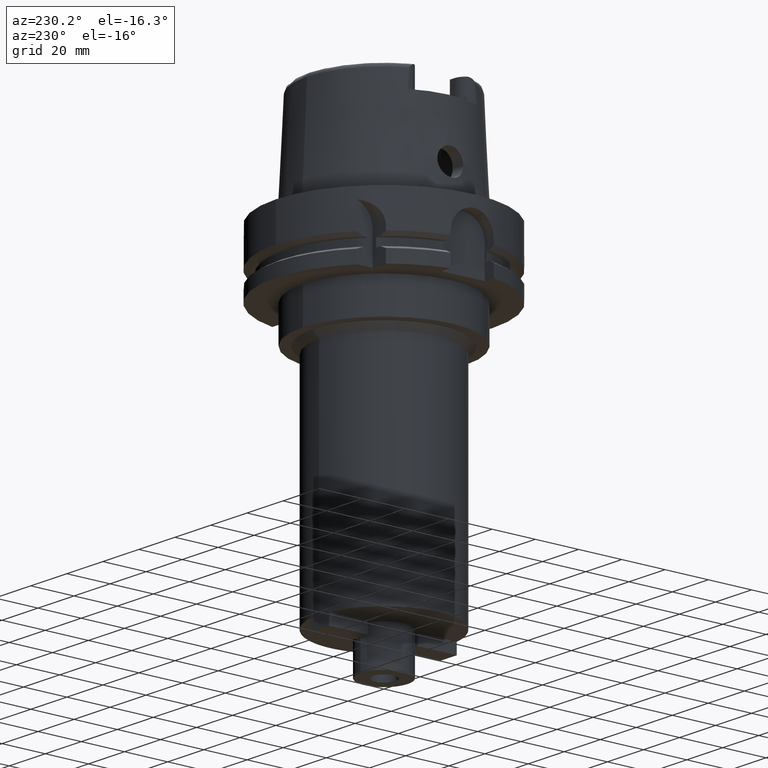
[diagram: clean part render]
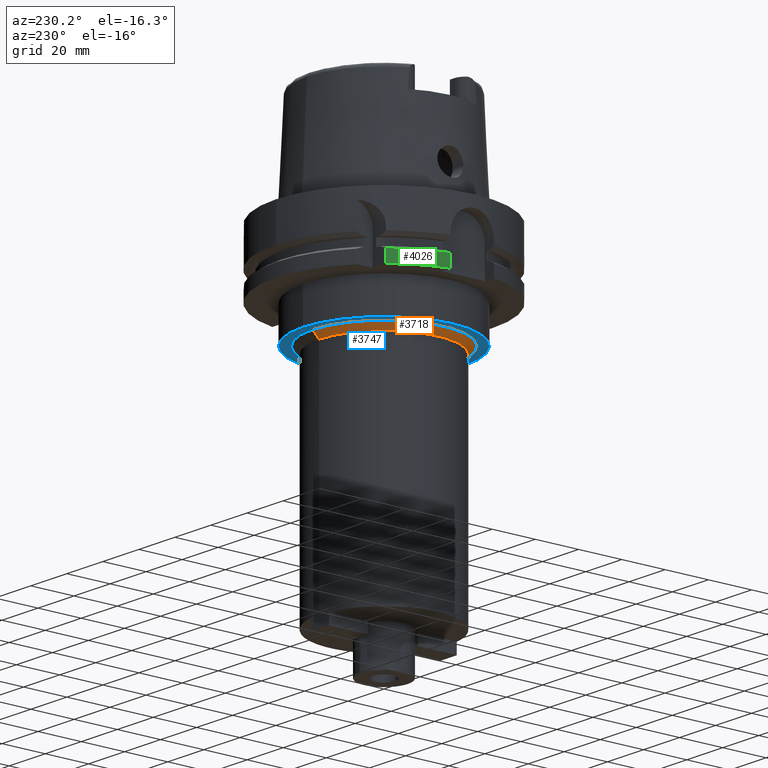
[diagram: same view with three faces highlighted in distinct colors, each labeled with its STEP entity id]
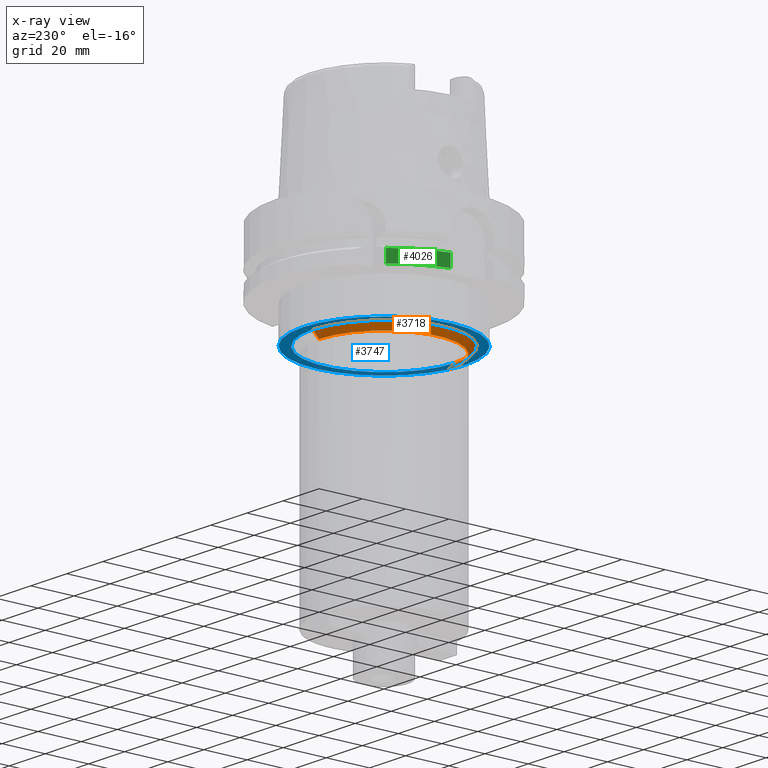
[diagram: x-ray of the same camera — body ghosted, the three highlighted faces saturated]
A machine part, auxiliary view with three faces highlighted in distinct colors.
The next image is the same camera in x-ray (body ghosted, the three faces saturated) — at least one of them is partly hidden behind the body in this view.
Their STEP definitions:

[orange] entity #3718 — the highlighted conical surface has half-angle 45 deg.
#1209=DIRECTION('',(0.E0,7.071067811865E-1,-7.071067811865E-1));
#1210=VECTOR('',#1209,4.242640687119E0);
#1211=CARTESIAN_POINT('',(0.E0,-3.3E1,-4.5E1));
#1212=LINE('',#1211,#1210);
#1216=CARTESIAN_POINT('',(0.E0,0.E0,-4.8E1));
#1217=DIRECTION('',(0.E0,0.E0,-1.E0));
#1218=DIRECTION('',(0.E0,-1.E0,0.E0));
#1219=AXIS2_PLACEMENT_3D('',#1216,#1217,#1218);
#1224=DIRECTION('',(0.E0,-7.071067811865E-1,-7.071067811865E-1));
#1225=VECTOR('',#1224,4.242640687119E0);
#1226=CARTESIAN_POINT('',(0.E0,3.3E1,-4.5E1));
#1227=LINE('',#1226,#1225);
#1255=CARTESIAN_POINT('',(0.E0,0.E0,-4.5E1));
#1256=DIRECTION('',(0.E0,0.E0,-1.E0));
#1257=DIRECTION('',(0.E0,-1.E0,0.E0));
#1258=AXIS2_PLACEMENT_3D('',#1255,#1256,#1257);
#2637=CARTESIAN_POINT('',(0.E0,3.E1,-4.8E1));
#2638=VERTEX_POINT('',#2637);
#2639=CARTESIAN_POINT('',(0.E0,-3.E1,-4.8E1));
#2640=VERTEX_POINT('',#2639);
#2641=CARTESIAN_POINT('',(0.E0,3.3E1,-4.5E1));
#2642=VERTEX_POINT('',#2641);
#2643=CARTESIAN_POINT('',(0.E0,-3.3E1,-4.5E1));
#2644=VERTEX_POINT('',#2643);
#3704=CARTESIAN_POINT('',(0.E0,0.E0,-4.65E1));
#3705=DIRECTION('',(0.E0,0.E0,1.E0));
#3706=DIRECTION('',(0.E0,1.E0,0.E0));
#3707=AXIS2_PLACEMENT_3D('',#3704,#3705,#3706);
#3708=CONICAL_SURFACE('',#3707,3.15E1,4.5E1);
#3710=ORIENTED_EDGE('',*,*,#3709,.F.);
#3712=ORIENTED_EDGE('',*,*,#3711,.F.);
#3714=ORIENTED_EDGE('',*,*,#3713,.T.);
#3715=ORIENTED_EDGE('',*,*,#3697,.T.);
#3716=EDGE_LOOP('',(#3710,#3712,#3714,#3715));
#3717=FACE_OUTER_BOUND('',#3716,.F.);
#1220=CIRCLE('',#1219,3.E1);
#1259=CIRCLE('',#1258,3.3E1);
#3697=EDGE_CURVE('',#2640,#2638,#1220,.T.);
#3709=EDGE_CURVE('',#2642,#2638,#1227,.T.);
#3711=EDGE_CURVE('',#2644,#2642,#1259,.T.);
#3713=EDGE_CURVE('',#2644,#2640,#1212,.T.);
#3718=ADVANCED_FACE('',(#3717),#3708,.T.);

[blue] entity #3747 — the highlighted planar face has unit normal (0, 0, 1).
#1239=CARTESIAN_POINT('',(0.E0,0.E0,-4.5E1));
#1240=DIRECTION('',(0.E0,0.E0,1.E0));
#1241=DIRECTION('',(0.E0,-1.E0,0.E0));
#1242=AXIS2_PLACEMENT_3D('',#1239,#1240,#1241);
#1247=CARTESIAN_POINT('',(0.E0,0.E0,-4.5E1));
#1248=DIRECTION('',(0.E0,0.E0,1.E0));
#1249=DIRECTION('',(0.E0,1.E0,0.E0));
#1250=AXIS2_PLACEMENT_3D('',#1247,#1248,#1249);
#1255=CARTESIAN_POINT('',(0.E0,0.E0,-4.5E1));
#1256=DIRECTION('',(0.E0,0.E0,-1.E0));
#1257=DIRECTION('',(0.E0,-1.E0,0.E0));
#1258=AXIS2_PLACEMENT_3D('',#1255,#1256,#1257);
#1263=CARTESIAN_POINT('',(0.E0,0.E0,-4.5E1));
#1264=DIRECTION('',(0.E0,0.E0,-1.E0));
#1265=DIRECTION('',(0.E0,1.E0,0.E0));
#1266=AXIS2_PLACEMENT_3D('',#1263,#1264,#1265);
#2641=CARTESIAN_POINT('',(0.E0,3.3E1,-4.5E1));
#2642=VERTEX_POINT('',#2641);
#2643=CARTESIAN_POINT('',(0.E0,-3.3E1,-4.5E1));
#2644=VERTEX_POINT('',#2643);
#2645=CARTESIAN_POINT('',(0.E0,-3.75E1,-4.5E1));
#2646=CARTESIAN_POINT('',(0.E0,3.75E1,-4.5E1));
#2647=VERTEX_POINT('',#2645);
#2648=VERTEX_POINT('',#2646);
#3732=CARTESIAN_POINT('',(0.E0,0.E0,-4.5E1));
#3733=DIRECTION('',(0.E0,0.E0,1.E0));
#3734=DIRECTION('',(0.E0,1.E0,0.E0));
#3735=AXIS2_PLACEMENT_3D('',#3732,#3733,#3734);
#3736=PLANE('',#3735);
#3738=ORIENTED_EDGE('',*,*,#3737,.T.);
#3740=ORIENTED_EDGE('',*,*,#3739,.T.);
#3741=EDGE_LOOP('',(#3738,#3740));
#3742=FACE_OUTER_BOUND('',#3741,.F.);
#3743=ORIENTED_EDGE('',*,*,#3711,.T.);
#3744=ORIENTED_EDGE('',*,*,#3727,.T.);
#3745=EDGE_LOOP('',(#3743,#3744));
#3746=FACE_BOUND('',#3745,.F.);
#1243=CIRCLE('',#1242,3.75E1);
#1251=CIRCLE('',#1250,3.75E1);
#1259=CIRCLE('',#1258,3.3E1);
#1267=CIRCLE('',#1266,3.3E1);
#3711=EDGE_CURVE('',#2644,#2642,#1259,.T.);
#3727=EDGE_CURVE('',#2642,#2644,#1267,.T.);
#3737=EDGE_CURVE('',#2647,#2648,#1243,.T.);
#3739=EDGE_CURVE('',#2648,#2647,#1251,.T.);
#3747=ADVANCED_FACE('',(#3742,#3746),#3736,.F.);

[green] entity #4026 — the highlighted cylindrical surface (partial cylindrical patch) has radius 50 mm, axis along (0, 0, 1).
#1292=CARTESIAN_POINT('',(0.E0,0.E0,-2.9E1));
#1293=DIRECTION('',(0.E0,0.E0,1.E0));
#1294=DIRECTION('',(-7.765951326142E-1,6.3E-1,0.E0));
#1295=AXIS2_PLACEMENT_3D('',#1292,#1293,#1294);
#1545=DIRECTION('',(-1.164835654148E-7,-1.435883620959E-7,1.E0));
#1546=VECTOR('',#1545,5.752407739009E0);
#1547=CARTESIAN_POINT('',(-3.882975663071E1,3.15E1,-2.9E1));
#1548=LINE('',#1547,#1546);
#1552=DIRECTION('',(-8.399427413532E-14,0.E0,-1.E0));
#1553=VECTOR('',#1552,5.752404735809E0);
#1554=CARTESIAN_POINT('',(-4.898979485566E1,1.E1,-2.324759526419E1));
#1555=LINE('',#1554,#1553);
#2212=CARTESIAN_POINT('',(0.E0,0.E0,-2.324759526419E1));
#2213=DIRECTION('',(0.E0,0.E0,-1.E0));
#2214=DIRECTION('',(-9.797958971133E-1,2.E-1,0.E0));
#2215=AXIS2_PLACEMENT_3D('',#2212,#2213,#2214);
#2657=CARTESIAN_POINT('',(-3.882975663071E1,3.15E1,-2.9E1));
#2658=VERTEX_POINT('',#2657);
#2659=CARTESIAN_POINT('',(-4.898979485566E1,1.E1,-2.9E1));
#2660=VERTEX_POINT('',#2659);
#2703=CARTESIAN_POINT('',(-3.882975730077E1,3.149999917402E1,
-2.324759226099E1));
#2704=VERTEX_POINT('',#2703);
#2705=CARTESIAN_POINT('',(-4.898979485566E1,1.E1,-2.324759526419E1));
#2706=VERTEX_POINT('',#2705);
#4013=CARTESIAN_POINT('',(0.E0,0.E0,-1.789E2));
#4014=DIRECTION('',(0.E0,0.E0,1.E0));
#4015=DIRECTION('',(0.E0,1.E0,0.E0));
#4016=AXIS2_PLACEMENT_3D('',#4013,#4014,#4015);
#4017=CYLINDRICAL_SURFACE('',#4016,5.E1);
#4019=ORIENTED_EDGE('',*,*,#4018,.T.);
#4021=ORIENTED_EDGE('',*,*,#4020,.F.);
#4022=ORIENTED_EDGE('',*,*,#3993,.T.);
#4023=ORIENTED_EDGE('',*,*,#3785,.F.);
#4024=EDGE_LOOP('',(#4019,#4021,#4022,#4023));
#4025=FACE_OUTER_BOUND('',#4024,.F.);
#1296=CIRCLE('',#1295,5.E1);
#2216=CIRCLE('',#2215,5.E1);
#3785=EDGE_CURVE('',#2658,#2660,#1296,.T.);
#3993=EDGE_CURVE('',#2706,#2660,#1555,.T.);
#4018=EDGE_CURVE('',#2658,#2704,#1548,.T.);
#4020=EDGE_CURVE('',#2706,#2704,#2216,.T.);
#4026=ADVANCED_FACE('',(#4025),#4017,.T.);